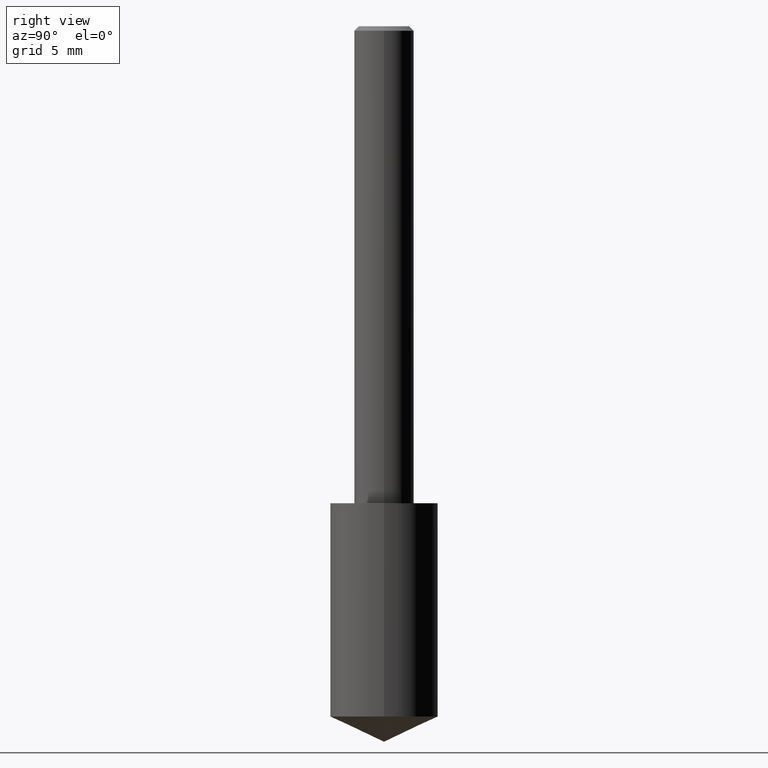
[diagram: clean part render]
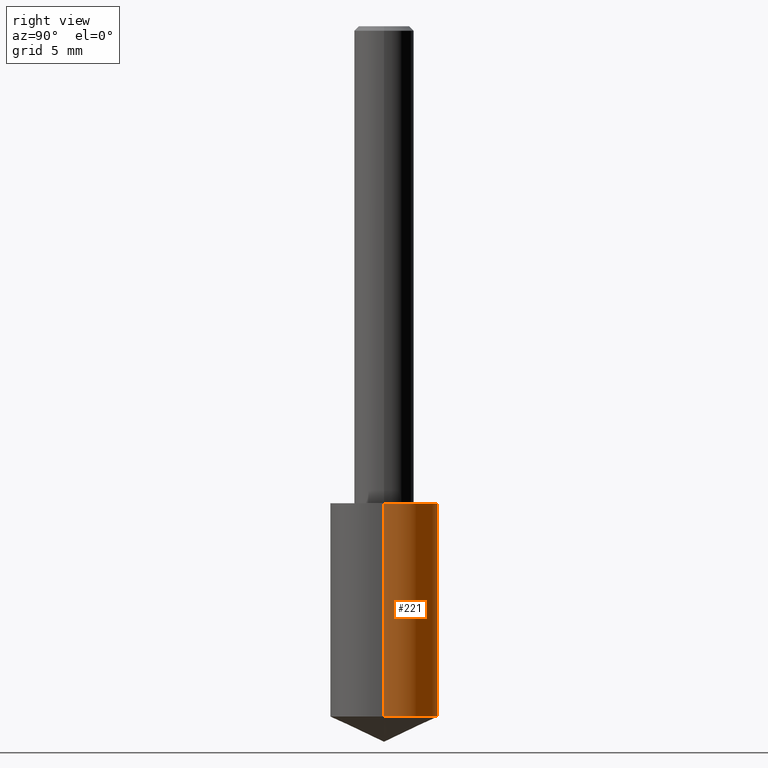
[diagram: same view with one face highlighted and labeled with its STEP entity id]
A machine part, right view. The second image highlights one B-rep face of the part: STEP entity #221.
In plain terms, the highlighted cylindrical surface (partial cylindrical patch) has radius 2.8753 mm, axis along (-0, 0, 1).
Its self-contained STEP definition (entity closure, byte-faithful):
#16 = DIRECTION ( 'NONE',  ( 1.000000000000000000, -6.982962677686264344E-15, 0.000000000000000000 ) ) ;
#44 = EDGE_CURVE ( 'NONE', #71, #133, #232, .T. ) ;
#46 = AXIS2_PLACEMENT_3D ( 'NONE', #55, #317, #197 ) ;
#48 = CARTESIAN_POINT ( 'NONE',  ( 2.445468806185136877E-29, -3.491481338843145977E-15, -1.000000000000000222 ) ) ;
#50 = ORIENTED_EDGE ( 'NONE', *, *, #44, .F. ) ;
#54 = LINE ( 'NONE', #78, #135 ) ;
#55 = CARTESIAN_POINT ( 'NONE',  ( 3.539116627083612931E-29, -5.052920580380713708E-15, -1.447213973096854511 ) ) ;
#66 = DIRECTION ( 'NONE',  ( -2.445468806185136877E-29, 3.491481338843145188E-15, 1.000000000000000000 ) ) ;
#71 = VERTEX_POINT ( 'NONE', #220 ) ;
#72 = ORIENTED_EDGE ( 'NONE', *, *, #195, .T. ) ;
#78 = CARTESIAN_POINT ( 'NONE',  ( 0.1131999999999999812, -4.281952713957231192E-15, -1.000000000000000222 ) ) ;
#83 = DIRECTION ( 'NONE',  ( -2.445468806185136877E-29, 3.491481338843145188E-15, 1.000000000000000000 ) ) ;
#86 = EDGE_CURVE ( 'NONE', #95, #71, #54, .T. ) ;
#87 = DIRECTION ( 'NONE',  ( -2.445468806185136597E-29, 3.491481338843145583E-15, 1.000000000000000000 ) ) ;
#88 = LINE ( 'NONE', #113, #275 ) ;
#95 = VERTEX_POINT ( 'NONE', #109 ) ;
#109 = CARTESIAN_POINT ( 'NONE',  ( 0.1132000000000000089, -5.843391955494798923E-15, -1.447213973096854511 ) ) ;
#112 = CIRCLE ( 'NONE', #46, 0.1131999999999999812 ) ;
#113 = CARTESIAN_POINT ( 'NONE',  ( -0.1131999999999999812, -2.687146961962713193E-15, -1.000000000000000222 ) ) ;
#115 = CARTESIAN_POINT ( 'NONE',  ( 2.445468806185137438E-29, -3.491481338843146371E-15, -1.000000000000000222 ) ) ;
#130 = DIRECTION ( 'NONE',  ( -2.445468806185136597E-29, 3.491481338843145583E-15, 1.000000000000000000 ) ) ;
#133 = VERTEX_POINT ( 'NONE', #296 ) ;
#135 = VECTOR ( 'NONE', #83, 39.37007874015748143 ) ;
#159 = EDGE_LOOP ( 'NONE', ( #72, #334, #50, #314 ) ) ;
#195 = EDGE_CURVE ( 'NONE', #95, #307, #112, .T. ) ;
#197 = DIRECTION ( 'NONE',  ( 1.000000000000000000, -6.982962677686269077E-15, 0.000000000000000000 ) ) ;
#200 = AXIS2_PLACEMENT_3D ( 'NONE', #115, #87, #16 ) ;
#220 = CARTESIAN_POINT ( 'NONE',  ( 0.1131999999999999812, -4.281952713957231192E-15, -1.000000000000000222 ) ) ;
#221 = ADVANCED_FACE ( 'NONE', ( #226 ), #328, .T. ) ;
#226 = FACE_OUTER_BOUND ( 'NONE', #159, .T. ) ;
#232 = CIRCLE ( 'NONE', #293, 0.1131999999999999812 ) ;
#264 = DIRECTION ( 'NONE',  ( 1.000000000000000000, -6.982962677686269077E-15, 0.000000000000000000 ) ) ;
#275 = VECTOR ( 'NONE', #66, 39.37007874015748143 ) ;
#281 = CARTESIAN_POINT ( 'NONE',  ( -0.1132000000000000089, -4.248586203500279741E-15, -1.447213973096854511 ) ) ;
#293 = AXIS2_PLACEMENT_3D ( 'NONE', #48, #130, #264 ) ;
#296 = CARTESIAN_POINT ( 'NONE',  ( -0.1131999999999999812, -3.467866582731496664E-15, -1.000000000000000222 ) ) ;
#307 = VERTEX_POINT ( 'NONE', #281 ) ;
#314 = ORIENTED_EDGE ( 'NONE', *, *, #86, .F. ) ;
#317 = DIRECTION ( 'NONE',  ( -2.445468806185136597E-29, 3.491481338843145583E-15, 1.000000000000000000 ) ) ;
#323 = EDGE_CURVE ( 'NONE', #307, #133, #88, .T. ) ;
#328 = CYLINDRICAL_SURFACE ( 'NONE', #200, 0.1131999999999999812 ) ;
#334 = ORIENTED_EDGE ( 'NONE', *, *, #323, .T. ) ;